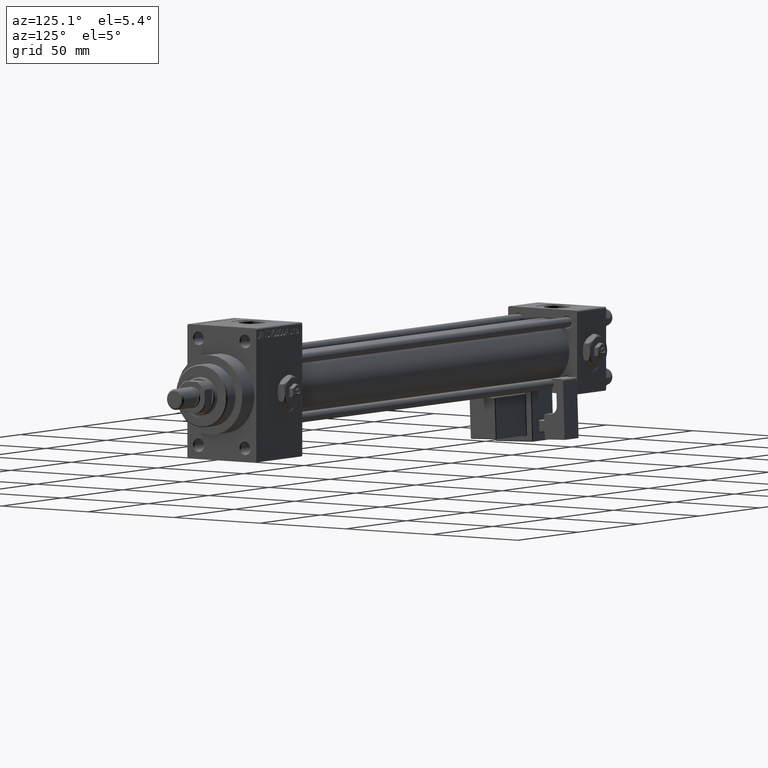
[diagram: clean part render]
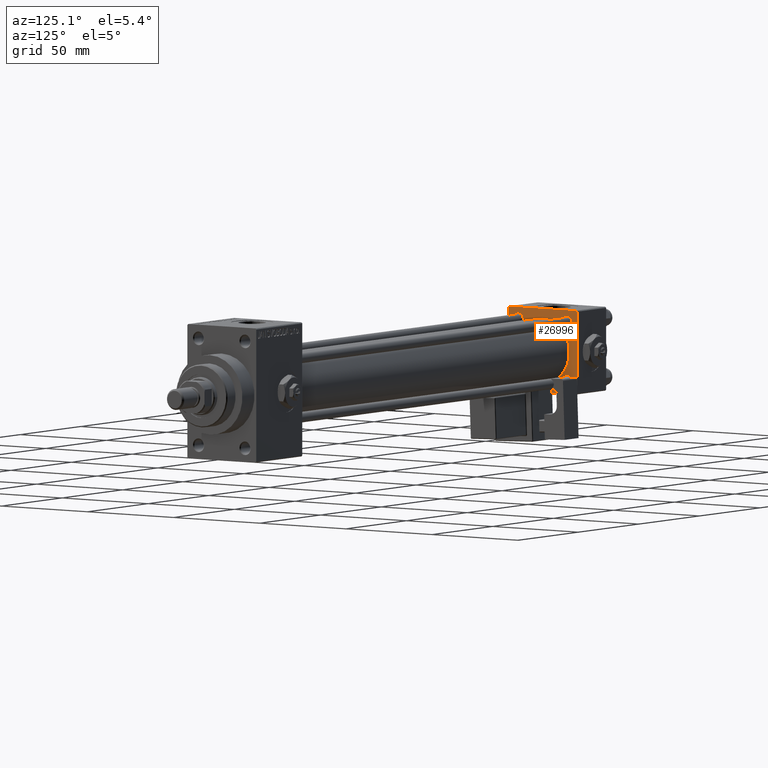
[diagram: same view with one face highlighted and labeled with its STEP entity id]
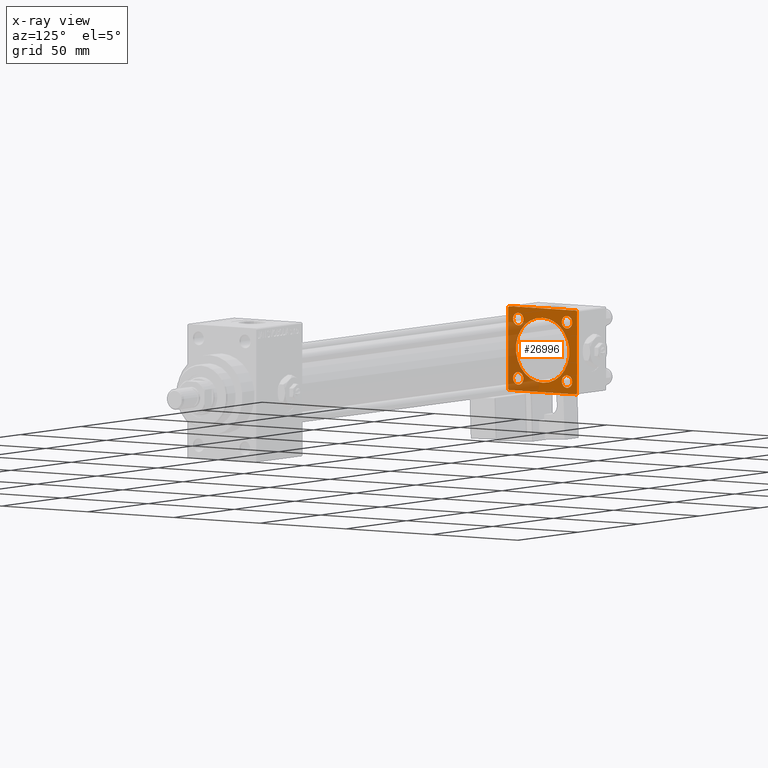
[diagram: x-ray of the same camera — body ghosted, the highlighted face saturated]
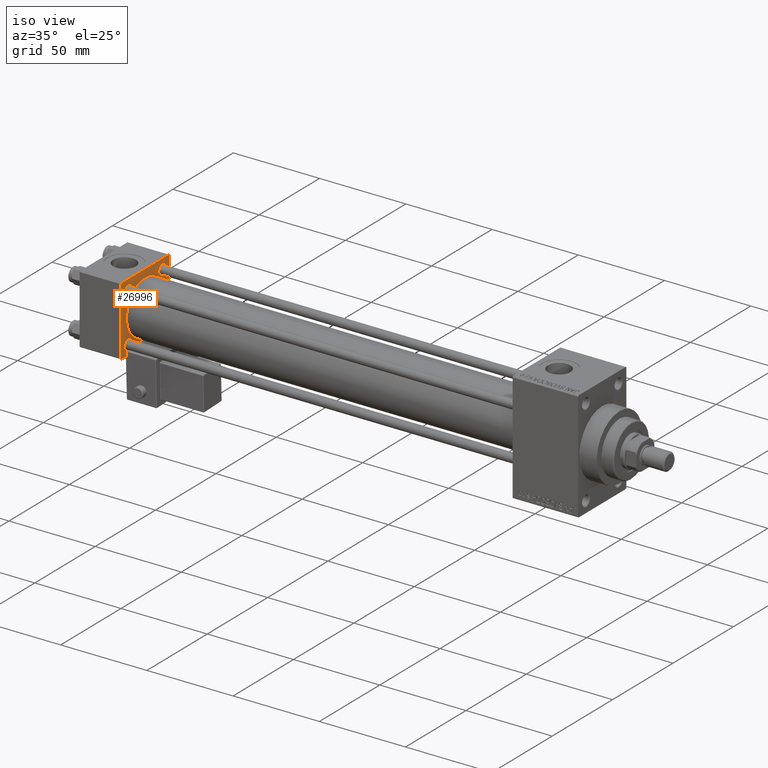
[diagram: same view with one face highlighted and labeled with its STEP entity id]
A machine part, auxiliary view. The second image highlights one B-rep face of the part: STEP entity #26996.
The next image is the same camera in x-ray: the body ghosted, the highlighted face saturated — about 34% of this face is hidden behind the body in this view.
A second angle (iso view) of the same face is appended — the face is thin or edge-on in the first view.
In plain terms, the highlighted planar face has unit normal (-1, 0, 0).
Its self-contained STEP definition (entity closure, byte-faithful):
#855 = ORIENTED_EDGE ( 'NONE', *, *, #21983, .T. ) ;
#861 = EDGE_CURVE ( 'NONE', #27956, #18178, #29481, .T. ) ;
#907 = CARTESIAN_POINT ( 'NONE',  ( 24.00000000000000000, 20.00000000000000000, -20.00000000000000711 ) ) ;
#1126 = DIRECTION ( 'NONE',  ( 0.000000000000000000, 0.000000000000000000, 1.000000000000000000 ) ) ;
#1248 = CIRCLE ( 'NONE', #34622, 3.000000000000031974 ) ;
#1553 = AXIS2_PLACEMENT_3D ( 'NONE', #31211, #15777, #27554 ) ;
#1826 = CIRCLE ( 'NONE', #31055, 3.000000000000004441 ) ;
#2543 = CIRCLE ( 'NONE', #46819, 3.000000000000031974 ) ;
#2638 = CARTESIAN_POINT ( 'NONE',  ( 24.00000000000000000, 14.14999999999999858, -14.15000000000000036 ) ) ;
#3000 = EDGE_CURVE ( 'NONE', #17029, #16571, #46404, .T. ) ;
#3058 = EDGE_LOOP ( 'NONE', ( #30721, #37237, #5798, #11585, #855, #48584, #25322, #13322 ) ) ;
#3098 = CARTESIAN_POINT ( 'NONE',  ( 24.00000000000000000, 19.50000000000000711, -20.00000000000000711 ) ) ;
#3500 = VERTEX_POINT ( 'NONE', #30208 ) ;
#3790 = CIRCLE ( 'NONE', #9606, 15.50000000000000000 ) ;
#4829 = LINE ( 'NONE', #907, #25503 ) ;
#4989 = CIRCLE ( 'NONE', #35930, 3.000000000000031974 ) ;
#5798 = ORIENTED_EDGE ( 'NONE', *, *, #45533, .F. ) ;
#6206 = CARTESIAN_POINT ( 'NONE',  ( 24.00000000000000000, 20.00000000000000000, 20.00000000000000000 ) ) ;
#6372 = CARTESIAN_POINT ( 'NONE',  ( 24.00000000000000000, 20.00000000000000000, -19.50000000000002132 ) ) ;
#6690 = DIRECTION ( 'NONE',  ( -1.000000000000000000, -0.000000000000000000, -0.000000000000000000 ) ) ;
#6897 = EDGE_CURVE ( 'NONE', #16143, #19380, #26728, .T. ) ;
#7142 = EDGE_CURVE ( 'NONE', #19380, #24558, #27495, .T. ) ;
#7318 = VERTEX_POINT ( 'NONE', #8382 ) ;
#7842 = CARTESIAN_POINT ( 'NONE',  ( 24.00000000000000000, -14.14999999999999503, -17.15000000000000924 ) ) ;
#7957 = VERTEX_POINT ( 'NONE', #24200 ) ;
#8062 = VERTEX_POINT ( 'NONE', #38758 ) ;
#8164 = DIRECTION ( 'NONE',  ( 0.000000000000000000, 0.000000000000000000, 1.000000000000000000 ) ) ;
#8382 = CARTESIAN_POINT ( 'NONE',  ( 24.00000000000000000, 14.14999999999999858, 17.15000000000003411 ) ) ;
#8864 = CARTESIAN_POINT ( 'NONE',  ( 24.00000000000000000, 14.14999999999999858, 14.15000000000000036 ) ) ;
#9134 = CARTESIAN_POINT ( 'NONE',  ( 23.99999999999999289, -2.602085213965210642E-15, 0.000000000000000000 ) ) ;
#9606 = AXIS2_PLACEMENT_3D ( 'NONE', #9134, #17728, #12780 ) ;
#9762 = EDGE_LOOP ( 'NONE', ( #36625, #15347 ) ) ;
#10093 = CARTESIAN_POINT ( 'NONE',  ( 24.00000000000000000, -19.49999999999999289, 19.99999999999998934 ) ) ;
#10318 = EDGE_LOOP ( 'NONE', ( #28668, #34250 ) ) ;
#10583 = VERTEX_POINT ( 'NONE', #10093 ) ;
#11513 = CARTESIAN_POINT ( 'NONE',  ( 23.99999999999999289, -2.602085213965210642E-15, 0.000000000000000000 ) ) ;
#11585 = ORIENTED_EDGE ( 'NONE', *, *, #20793, .T. ) ;
#11593 = FACE_BOUND ( 'NONE', #23133, .T. ) ;
#12589 = CIRCLE ( 'NONE', #21817, 3.000000000000004441 ) ;
#12780 = DIRECTION ( 'NONE',  ( 0.000000000000000000, 0.000000000000000000, 1.000000000000000000 ) ) ;
#13016 = VECTOR ( 'NONE', #38130, 1000.000000000000000 ) ;
#13322 = ORIENTED_EDGE ( 'NONE', *, *, #7142, .T. ) ;
#13626 = LINE ( 'NONE', #33020, #45580 ) ;
#13961 = CARTESIAN_POINT ( 'NONE',  ( 23.99999999999999289, -7.038826752868134786E-16, -15.50000000000000000 ) ) ;
#14314 = VERTEX_POINT ( 'NONE', #20822 ) ;
#14657 = DIRECTION ( 'NONE',  ( 0.000000000000000000, 0.000000000000000000, 1.000000000000000000 ) ) ;
#14742 = CIRCLE ( 'NONE', #51557, 15.50000000000000000 ) ;
#15347 = ORIENTED_EDGE ( 'NONE', *, *, #30764, .T. ) ;
#15777 = DIRECTION ( 'NONE',  ( -1.000000000000000000, 0.000000000000000000, -0.000000000000000000 ) ) ;
#15983 = CARTESIAN_POINT ( 'NONE',  ( 24.00000000000000000, -14.14999999999999503, 11.15000000000000036 ) ) ;
#16133 = ORIENTED_EDGE ( 'NONE', *, *, #31826, .T. ) ;
#16143 = VERTEX_POINT ( 'NONE', #42710 ) ;
#16283 = AXIS2_PLACEMENT_3D ( 'NONE', #32776, #32013, #1126 ) ;
#16391 = ORIENTED_EDGE ( 'NONE', *, *, #23909, .F. ) ;
#16571 = VERTEX_POINT ( 'NONE', #7842 ) ;
#16727 = EDGE_CURVE ( 'NONE', #7318, #31514, #1248, .T. ) ;
#16937 = EDGE_LOOP ( 'NONE', ( #16133, #21840 ) ) ;
#16946 = CARTESIAN_POINT ( 'NONE',  ( 24.00000000000000000, -20.00000000000000355, 19.49999999999998224 ) ) ;
#17029 = VERTEX_POINT ( 'NONE', #46447 ) ;
#17240 = VECTOR ( 'NONE', #32931, 1000.000000000000114 ) ;
#17332 = EDGE_CURVE ( 'NONE', #38606, #26803, #3790, .T. ) ;
#17728 = DIRECTION ( 'NONE',  ( 1.000000000000000000, 0.000000000000000000, 0.000000000000000000 ) ) ;
#18178 = VERTEX_POINT ( 'NONE', #6372 ) ;
#18199 = CARTESIAN_POINT ( 'NONE',  ( 24.00000000000000000, -14.14999999999999503, 14.15000000000000391 ) ) ;
#18528 = EDGE_CURVE ( 'NONE', #27956, #24558, #4829, .T. ) ;
#18571 = DIRECTION ( 'NONE',  ( -1.000000000000000000, -0.000000000000000000, -0.000000000000000000 ) ) ;
#18918 = PLANE ( 'NONE',  #1553 ) ;
#19380 = VERTEX_POINT ( 'NONE', #19570 ) ;
#19570 = CARTESIAN_POINT ( 'NONE',  ( 24.00000000000000000, -20.00000000000000000, -19.49999999999999645 ) ) ;
#19918 = CARTESIAN_POINT ( 'NONE',  ( 24.00000000000000000, -14.14999999999999503, 14.15000000000000391 ) ) ;
#20366 = LINE ( 'NONE', #16946, #17240 ) ;
#20793 = EDGE_CURVE ( 'NONE', #47037, #14314, #35628, .T. ) ;
#20822 = CARTESIAN_POINT ( 'NONE',  ( 24.00000000000000000, 19.50000000000000000, 20.00000000000000000 ) ) ;
#20949 = CARTESIAN_POINT ( 'NONE',  ( 24.00000000000000000, -14.14999999999999503, -14.15000000000000391 ) ) ;
#21817 = AXIS2_PLACEMENT_3D ( 'NONE', #19918, #47144, #8164 ) ;
#21840 = ORIENTED_EDGE ( 'NONE', *, *, #16727, .T. ) ;
#21983 = EDGE_CURVE ( 'NONE', #14314, #10583, #42051, .T. ) ;
#23133 = EDGE_LOOP ( 'NONE', ( #45062, #16391 ) ) ;
#23909 = EDGE_CURVE ( 'NONE', #26803, #38606, #14742, .T. ) ;
#23979 = EDGE_CURVE ( 'NONE', #10583, #16143, #20366, .T. ) ;
#24200 = CARTESIAN_POINT ( 'NONE',  ( 24.00000000000000000, 14.14999999999999858, -17.15000000000003411 ) ) ;
#24558 = VERTEX_POINT ( 'NONE', #27603 ) ;
#24570 = VECTOR ( 'NONE', #37603, 1000.000000000000000 ) ;
#25315 = DIRECTION ( 'NONE',  ( -1.000000000000000000, -0.000000000000000000, -0.000000000000000000 ) ) ;
#25322 = ORIENTED_EDGE ( 'NONE', *, *, #6897, .T. ) ;
#25503 = VECTOR ( 'NONE', #49035, 1000.000000000000000 ) ;
#26728 = LINE ( 'NONE', #43227, #27207 ) ;
#26803 = VERTEX_POINT ( 'NONE', #13961 ) ;
#26996 = ADVANCED_FACE ( 'NONE', ( #31740, #51629, #30700, #50845, #11593, #43533 ), #18918, .F. ) ;
#27207 = VECTOR ( 'NONE', #46623, 1000.000000000000000 ) ;
#27495 = LINE ( 'NONE', #31409, #29701 ) ;
#27510 = DIRECTION ( 'NONE',  ( 0.000000000000000000, -0.7071067811865425767, 0.7071067811865525687 ) ) ;
#27554 = DIRECTION ( 'NONE',  ( -0.000000000000000000, 0.000000000000000000, 1.000000000000000000 ) ) ;
#27603 = CARTESIAN_POINT ( 'NONE',  ( 24.00000000000000000, -19.50000000000000711, -20.00000000000000000 ) ) ;
#27757 = CARTESIAN_POINT ( 'NONE',  ( 24.00000000000000000, 19.50000000000000000, 20.00000000000000000 ) ) ;
#27956 = VERTEX_POINT ( 'NONE', #3098 ) ;
#28171 = DIRECTION ( 'NONE',  ( -1.000000000000000000, -0.000000000000000000, -0.000000000000000000 ) ) ;
#28668 = ORIENTED_EDGE ( 'NONE', *, *, #34796, .T. ) ;
#29481 = LINE ( 'NONE', #37859, #24570 ) ;
#29701 = VECTOR ( 'NONE', #47380, 1000.000000000000000 ) ;
#30208 = CARTESIAN_POINT ( 'NONE',  ( 24.00000000000000000, 14.14999999999999858, -11.14999999999997016 ) ) ;
#30333 = CIRCLE ( 'NONE', #39600, 3.000000000000031974 ) ;
#30649 = EDGE_LOOP ( 'NONE', ( #34467, #50175 ) ) ;
#30700 = FACE_BOUND ( 'NONE', #10318, .T. ) ;
#30721 = ORIENTED_EDGE ( 'NONE', *, *, #18528, .F. ) ;
#30764 = EDGE_CURVE ( 'NONE', #3500, #7957, #4989, .T. ) ;
#31055 = AXIS2_PLACEMENT_3D ( 'NONE', #18199, #6690, #45421 ) ;
#31211 = CARTESIAN_POINT ( 'NONE',  ( 24.00000000000000000, 0.000000000000000000, 0.000000000000000000 ) ) ;
#31409 = CARTESIAN_POINT ( 'NONE',  ( 24.00000000000000000, -19.50000000000000711, -20.00000000000000000 ) ) ;
#31514 = VERTEX_POINT ( 'NONE', #45755 ) ;
#31731 = DIRECTION ( 'NONE',  ( 0.000000000000000000, 0.000000000000000000, 1.000000000000000000 ) ) ;
#31740 = FACE_BOUND ( 'NONE', #30649, .T. ) ;
#31826 = EDGE_CURVE ( 'NONE', #31514, #7318, #2543, .T. ) ;
#32013 = DIRECTION ( 'NONE',  ( -1.000000000000000000, -0.000000000000000000, -0.000000000000000000 ) ) ;
#32099 = CARTESIAN_POINT ( 'NONE',  ( 24.00000000000000000, 14.14999999999999858, 14.15000000000000036 ) ) ;
#32776 = CARTESIAN_POINT ( 'NONE',  ( 24.00000000000000000, -14.14999999999999503, -14.15000000000000391 ) ) ;
#32876 = CIRCLE ( 'NONE', #51295, 3.000000000000004441 ) ;
#32931 = DIRECTION ( 'NONE',  ( -0.000000000000000000, -0.7071067811865500152, -0.7071067811865451302 ) ) ;
#33020 = CARTESIAN_POINT ( 'NONE',  ( 24.00000000000000000, 20.00000000000000000, 20.00000000000000000 ) ) ;
#33128 = EDGE_CURVE ( 'NONE', #8062, #39410, #12589, .T. ) ;
#33538 = DIRECTION ( 'NONE',  ( 0.000000000000000000, 0.000000000000000000, -1.000000000000000000 ) ) ;
#34250 = ORIENTED_EDGE ( 'NONE', *, *, #33128, .T. ) ;
#34467 = ORIENTED_EDGE ( 'NONE', *, *, #42417, .T. ) ;
#34622 = AXIS2_PLACEMENT_3D ( 'NONE', #8864, #25315, #48621 ) ;
#34796 = EDGE_CURVE ( 'NONE', #39410, #8062, #1826, .T. ) ;
#35328 = DIRECTION ( 'NONE',  ( 1.000000000000000000, 0.000000000000000000, 0.000000000000000000 ) ) ;
#35628 = LINE ( 'NONE', #27757, #43078 ) ;
#35930 = AXIS2_PLACEMENT_3D ( 'NONE', #44142, #44382, #39967 ) ;
#36625 = ORIENTED_EDGE ( 'NONE', *, *, #38041, .T. ) ;
#36930 = DIRECTION ( 'NONE',  ( -1.000000000000000000, -0.000000000000000000, -0.000000000000000000 ) ) ;
#37237 = ORIENTED_EDGE ( 'NONE', *, *, #861, .T. ) ;
#37603 = DIRECTION ( 'NONE',  ( -0.000000000000000000, 0.7071067811865524577, 0.7071067811865426878 ) ) ;
#37859 = CARTESIAN_POINT ( 'NONE',  ( 24.00000000000000000, 20.00000000000000000, -19.50000000000002132 ) ) ;
#38041 = EDGE_CURVE ( 'NONE', #7957, #3500, #30333, .T. ) ;
#38130 = DIRECTION ( 'NONE',  ( 0.000000000000000000, -1.000000000000000000, -2.602085213965210149E-16 ) ) ;
#38606 = VERTEX_POINT ( 'NONE', #40480 ) ;
#38758 = CARTESIAN_POINT ( 'NONE',  ( 24.00000000000000000, -14.14999999999999503, 17.15000000000000924 ) ) ;
#39410 = VERTEX_POINT ( 'NONE', #15983 ) ;
#39600 = AXIS2_PLACEMENT_3D ( 'NONE', #2638, #18571, #14657 ) ;
#39967 = DIRECTION ( 'NONE',  ( 0.000000000000000000, 0.000000000000000000, 1.000000000000000000 ) ) ;
#40480 = CARTESIAN_POINT ( 'NONE',  ( 23.99999999999999289, -2.602085213965210642E-15, 15.50000000000000000 ) ) ;
#42051 = LINE ( 'NONE', #6206, #13016 ) ;
#42417 = EDGE_CURVE ( 'NONE', #16571, #17029, #32876, .T. ) ;
#42710 = CARTESIAN_POINT ( 'NONE',  ( 24.00000000000000000, -20.00000000000000355, 19.49999999999998224 ) ) ;
#43078 = VECTOR ( 'NONE', #27510, 999.9999999999998863 ) ;
#43187 = DIRECTION ( 'NONE',  ( 0.000000000000000000, 0.000000000000000000, 1.000000000000000000 ) ) ;
#43227 = CARTESIAN_POINT ( 'NONE',  ( 24.00000000000000000, -20.00000000000000355, 19.99999999999998934 ) ) ;
#43533 = FACE_OUTER_BOUND ( 'NONE', #3058, .T. ) ;
#44142 = CARTESIAN_POINT ( 'NONE',  ( 24.00000000000000000, 14.14999999999999858, -14.15000000000000036 ) ) ;
#44150 = DIRECTION ( 'NONE',  ( 0.000000000000000000, 0.000000000000000000, 1.000000000000000000 ) ) ;
#44382 = DIRECTION ( 'NONE',  ( -1.000000000000000000, -0.000000000000000000, -0.000000000000000000 ) ) ;
#45062 = ORIENTED_EDGE ( 'NONE', *, *, #17332, .F. ) ;
#45421 = DIRECTION ( 'NONE',  ( 0.000000000000000000, 0.000000000000000000, 1.000000000000000000 ) ) ;
#45459 = CARTESIAN_POINT ( 'NONE',  ( 24.00000000000000000, 20.00000000000000000, 19.49999999999999289 ) ) ;
#45533 = EDGE_CURVE ( 'NONE', #47037, #18178, #13626, .T. ) ;
#45580 = VECTOR ( 'NONE', #33538, 1000.000000000000000 ) ;
#45755 = CARTESIAN_POINT ( 'NONE',  ( 24.00000000000000000, 14.14999999999999858, 11.14999999999997016 ) ) ;
#46404 = CIRCLE ( 'NONE', #16283, 3.000000000000004441 ) ;
#46447 = CARTESIAN_POINT ( 'NONE',  ( 24.00000000000000000, -14.14999999999999503, -11.15000000000000036 ) ) ;
#46623 = DIRECTION ( 'NONE',  ( 0.000000000000000000, 8.673617379884036705E-17, -1.000000000000000000 ) ) ;
#46819 = AXIS2_PLACEMENT_3D ( 'NONE', #32099, #28171, #44150 ) ;
#47037 = VERTEX_POINT ( 'NONE', #45459 ) ;
#47144 = DIRECTION ( 'NONE',  ( -1.000000000000000000, -0.000000000000000000, -0.000000000000000000 ) ) ;
#47380 = DIRECTION ( 'NONE',  ( 0.000000000000000000, 0.7071067811865401342, -0.7071067811865549002 ) ) ;
#48584 = ORIENTED_EDGE ( 'NONE', *, *, #23979, .T. ) ;
#48621 = DIRECTION ( 'NONE',  ( 0.000000000000000000, 0.000000000000000000, 1.000000000000000000 ) ) ;
#49035 = DIRECTION ( 'NONE',  ( 0.000000000000000000, -1.000000000000000000, 1.734723475976807094E-16 ) ) ;
#50175 = ORIENTED_EDGE ( 'NONE', *, *, #3000, .T. ) ;
#50845 = FACE_BOUND ( 'NONE', #16937, .T. ) ;
#51295 = AXIS2_PLACEMENT_3D ( 'NONE', #20949, #36930, #31731 ) ;
#51557 = AXIS2_PLACEMENT_3D ( 'NONE', #11513, #35328, #43187 ) ;
#51629 = FACE_BOUND ( 'NONE', #9762, .T. ) ;